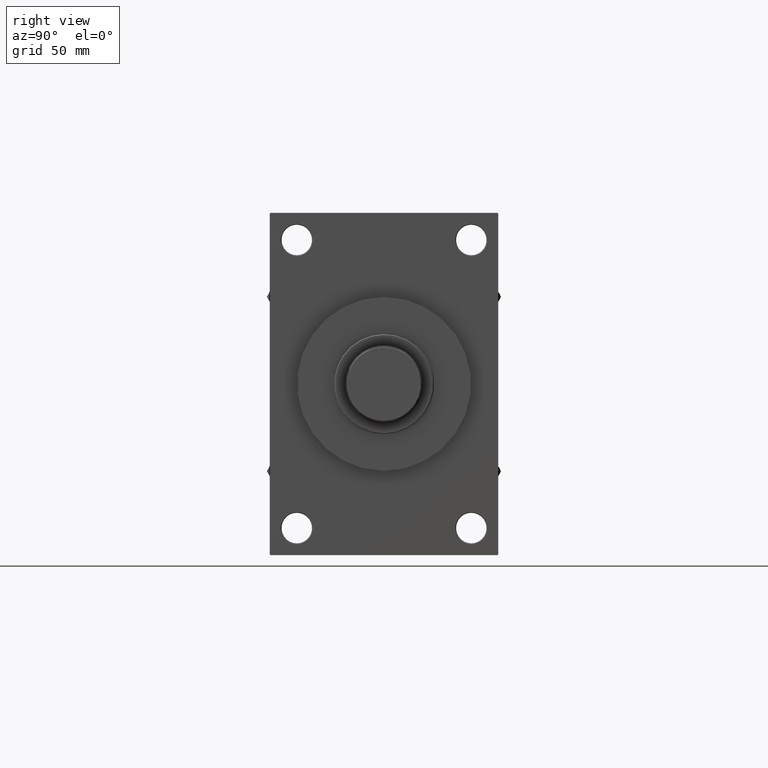
[diagram: clean part render]
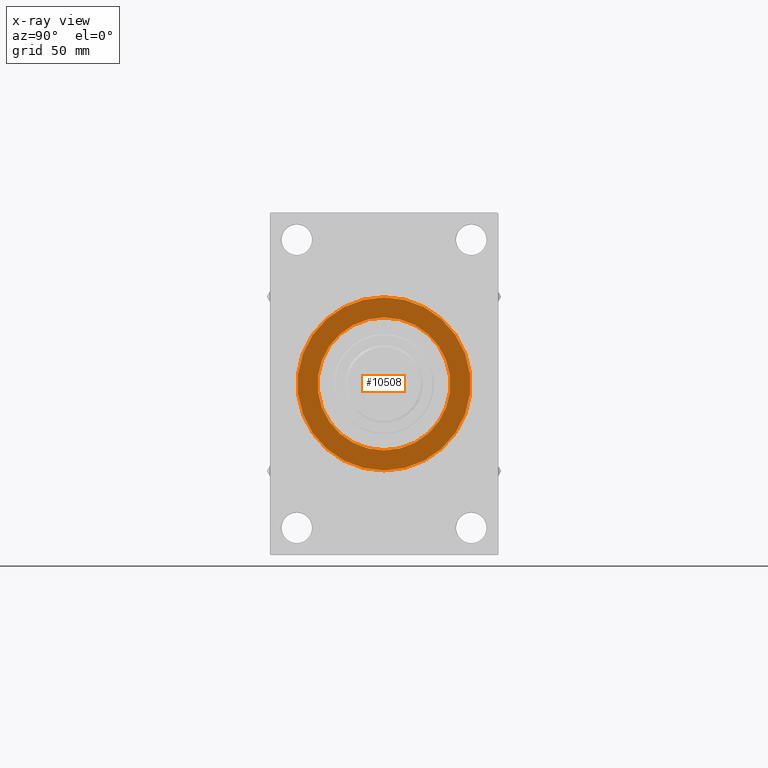
[diagram: x-ray — body ghosted, one internal face saturated and labeled with its STEP entity id]
A machine part, right view, then the same camera in x-ray: the body is ghosted and one INTERNAL B-rep face — a face not visible from any outside direction — is saturated and labeled: STEP entity #10508.
In plain terms, the highlighted planar face has unit normal (-1, 0, 0).
Its self-contained STEP definition (entity closure, byte-faithful):
#972 = CARTESIAN_POINT ( 'NONE',  ( 244.0000000000000000, 0.000000000000000000, -48.00000000000000711 ) ) ;
#1191 = EDGE_LOOP ( 'NONE', ( #35782, #7116 ) ) ;
#4601 = CARTESIAN_POINT ( 'NONE',  ( 244.0000000000000000, 0.000000000000000000, 0.000000000000000000 ) ) ;
#5446 = ORIENTED_EDGE ( 'NONE', *, *, #31684, .F. ) ;
#6107 = DIRECTION ( 'NONE',  ( -0.000000000000000000, 0.000000000000000000, 1.000000000000000000 ) ) ;
#6938 = AXIS2_PLACEMENT_3D ( 'NONE', #16630, #28347, #32251 ) ;
#7116 = ORIENTED_EDGE ( 'NONE', *, *, #30453, .F. ) ;
#10508 = ADVANCED_FACE ( 'NONE', ( #16608, #35405 ), #17322, .T. ) ;
#10537 = AXIS2_PLACEMENT_3D ( 'NONE', #47629, #21961, #47872 ) ;
#13165 = CIRCLE ( 'NONE', #6938, 48.00000000000000711 ) ;
#15739 = CARTESIAN_POINT ( 'NONE',  ( 244.0000000000000000, 5.051957280705747162E-15, -62.50000000000000000 ) ) ;
#16608 = FACE_BOUND ( 'NONE', #31522, .T. ) ;
#16630 = CARTESIAN_POINT ( 'NONE',  ( 244.0000000000000000, 0.000000000000000000, 0.000000000000000000 ) ) ;
#17322 = PLANE ( 'NONE',  #46255 ) ;
#19714 = DIRECTION ( 'NONE',  ( 0.000000000000000000, 0.000000000000000000, 1.000000000000000000 ) ) ;
#19964 = DIRECTION ( 'NONE',  ( -1.000000000000000000, 0.000000000000000000, -0.000000000000000000 ) ) ;
#21782 = VERTEX_POINT ( 'NONE', #972 ) ;
#21961 = DIRECTION ( 'NONE',  ( 1.000000000000000000, 0.000000000000000000, 0.000000000000000000 ) ) ;
#25287 = VERTEX_POINT ( 'NONE', #28860 ) ;
#27014 = DIRECTION ( 'NONE',  ( 0.000000000000000000, 0.000000000000000000, -1.000000000000000000 ) ) ;
#27743 = DIRECTION ( 'NONE',  ( 1.000000000000000000, 0.000000000000000000, 0.000000000000000000 ) ) ;
#28347 = DIRECTION ( 'NONE',  ( -1.000000000000000000, 0.000000000000000000, -0.000000000000000000 ) ) ;
#28860 = CARTESIAN_POINT ( 'NONE',  ( 244.0000000000000000, -2.602085213965210642E-15, 62.50000000000000000 ) ) ;
#30453 = EDGE_CURVE ( 'NONE', #45526, #25287, #41208, .T. ) ;
#31522 = EDGE_LOOP ( 'NONE', ( #34898, #5446 ) ) ;
#31608 = CIRCLE ( 'NONE', #10537, 62.50000000000000000 ) ;
#31684 = EDGE_CURVE ( 'NONE', #44032, #21782, #13165, .T. ) ;
#32229 = DIRECTION ( 'NONE',  ( -1.000000000000000000, 0.000000000000000000, -0.000000000000000000 ) ) ;
#32251 = DIRECTION ( 'NONE',  ( 0.000000000000000000, 0.000000000000000000, 1.000000000000000000 ) ) ;
#34339 = CARTESIAN_POINT ( 'NONE',  ( 244.0000000000000000, 5.878304635907296578E-15, 48.00000000000000711 ) ) ;
#34898 = ORIENTED_EDGE ( 'NONE', *, *, #36540, .F. ) ;
#35405 = FACE_OUTER_BOUND ( 'NONE', #1191, .T. ) ;
#35782 = ORIENTED_EDGE ( 'NONE', *, *, #42741, .F. ) ;
#36540 = EDGE_CURVE ( 'NONE', #21782, #44032, #43082, .T. ) ;
#40743 = AXIS2_PLACEMENT_3D ( 'NONE', #4601, #19964, #19714 ) ;
#41208 = CIRCLE ( 'NONE', #45898, 62.50000000000000000 ) ;
#42741 = EDGE_CURVE ( 'NONE', #25287, #45526, #31608, .T. ) ;
#43082 = CIRCLE ( 'NONE', #40743, 48.00000000000000711 ) ;
#44032 = VERTEX_POINT ( 'NONE', #34339 ) ;
#45526 = VERTEX_POINT ( 'NONE', #15739 ) ;
#45595 = CARTESIAN_POINT ( 'NONE',  ( 244.0000000000000000, -2.602085213965210642E-15, 0.000000000000000000 ) ) ;
#45898 = AXIS2_PLACEMENT_3D ( 'NONE', #45595, #27743, #27014 ) ;
#46255 = AXIS2_PLACEMENT_3D ( 'NONE', #46667, #32229, #6107 ) ;
#46667 = CARTESIAN_POINT ( 'NONE',  ( 244.0000000000000000, 0.000000000000000000, 0.000000000000000000 ) ) ;
#47629 = CARTESIAN_POINT ( 'NONE',  ( 244.0000000000000000, -2.602085213965210642E-15, 0.000000000000000000 ) ) ;
#47872 = DIRECTION ( 'NONE',  ( 0.000000000000000000, 0.000000000000000000, -1.000000000000000000 ) ) ;